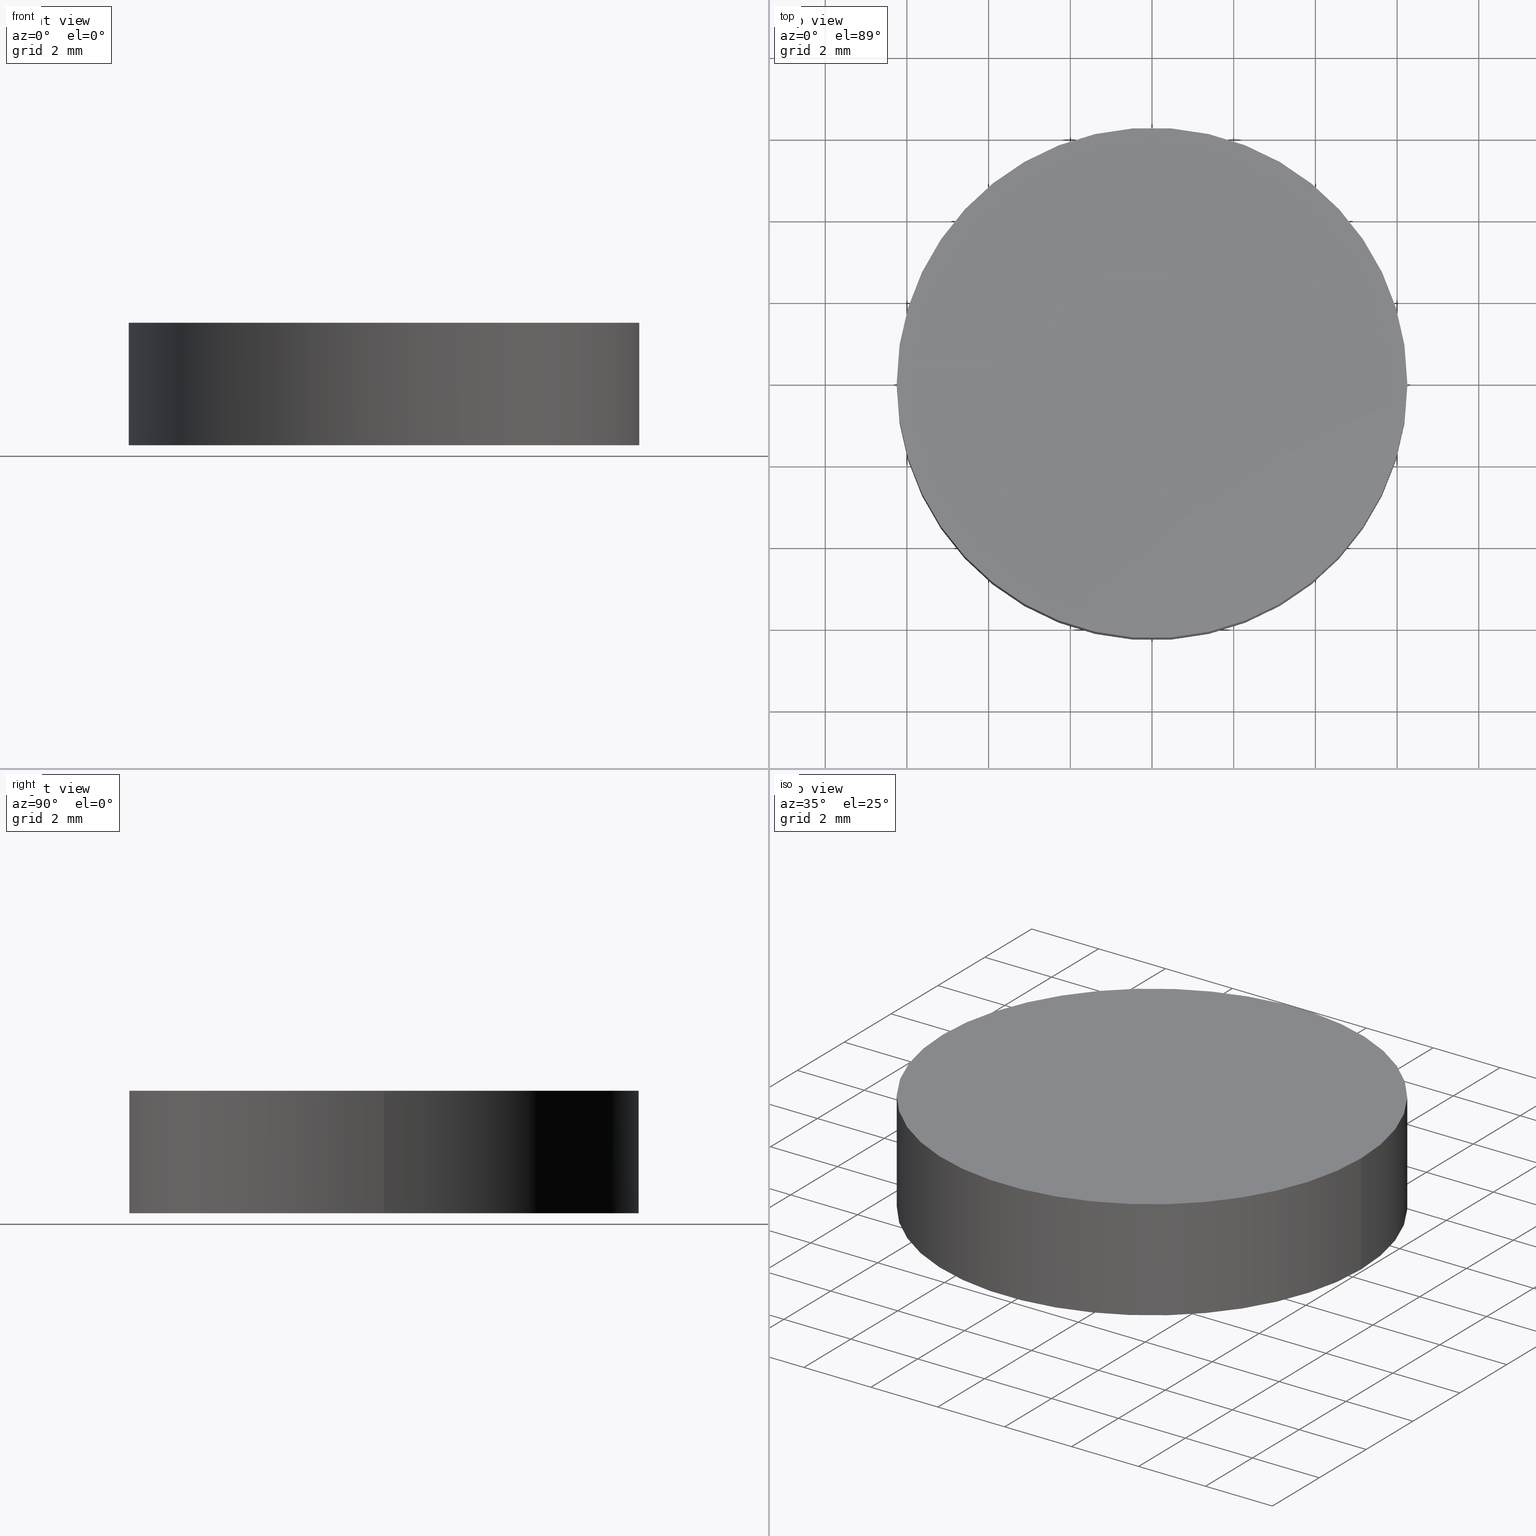
[diagram: canonical four-view strip — front | top / right | iso, engineering-drawing reading convention]
A machine part, canonical four-view strip (front | top / right | iso — engineering-drawing reading convention). The complete STEP part file that produces these views, byte-faithful:
ISO-10303-21;
HEADER;
FILE_DESCRIPTION (( 'STEP AP203' ),
    '1' );
FILE_NAME ('416002.STEP',
    '2019-08-21T06:17:56',
    ( '' ),
    ( '' ),
    'SwSTEP 2.0',
    'SolidWorks 2016',
    '' );
FILE_SCHEMA (( 'CONFIG_CONTROL_DESIGN' ));
ENDSEC;

DATA;
#1 = VERTEX_POINT ( 'NONE', #151 ) ;
#2 = PERSON_AND_ORGANIZATION ( #72, #167 ) ;
#3 = SHAPE_DEFINITION_REPRESENTATION ( #177, #42 ) ;
#4 = AXIS2_PLACEMENT_3D ( 'NONE', #237, #101, #67 ) ;
#5 = PLANE ( 'NONE',  #4 ) ;
#6 = DIRECTION ( 'NONE',  ( 0.0000000000000000000, 0.0000000000000000000, 1.000000000000000000 ) ) ;
#7 = PRODUCT_RELATED_PRODUCT_CATEGORY ( 'detail', '', ( #168 ) ) ;
#8 = DIRECTION ( 'NONE',  ( -0.0000000000000000000, -0.0000000000000000000, -1.000000000000000000 ) ) ;
#9 = CC_DESIGN_PERSON_AND_ORGANIZATION_ASSIGNMENT ( #106, #91, ( #21 ) ) ;
#10 = APPROVAL_PERSON_ORGANIZATION ( #159, #163, #114 ) ;
#11 = PRODUCT_DEFINITION_FORMATION_WITH_SPECIFIED_SOURCE ( '�κ�', '', #168, .NOT_KNOWN. ) ;
#12 = AXIS2_PLACEMENT_3D ( 'NONE', #122, #8, #214 ) ;
#13 = CC_DESIGN_DATE_AND_TIME_ASSIGNMENT ( #223, #19, ( #212 ) ) ;
#14 = LOCAL_TIME ( 14, 17, 56.00000000000000000, #128 ) ;
#15 = ORIENTED_EDGE ( 'NONE', *, *, #226, .T. ) ;
#16 = PRODUCT_DEFINITION ( 'δ֪', '', #21, #33 ) ;
#17 = CALENDAR_DATE ( 2019, 21, 8 ) ;
#18 = CALENDAR_DATE ( 2019, 21, 8 ) ;
#19 = DATE_TIME_ROLE ( 'creation_date' ) ;
#20 = PERSON_AND_ORGANIZATION ( #72, #167 ) ;
#21 = PRODUCT_DEFINITION_FORMATION_WITH_SPECIFIED_SOURCE ( '�κ�', '', #130, .NOT_KNOWN. ) ;
#22 = COORDINATED_UNIVERSAL_TIME_OFFSET ( 8, 0, .AHEAD. ) ;
#23 = COORDINATED_UNIVERSAL_TIME_OFFSET ( 8, 0, .AHEAD. ) ;
#24 = PRODUCT_RELATED_PRODUCT_CATEGORY ( 'detail', '', ( #130 ) ) ;
#25 = PERSON_AND_ORGANIZATION ( #72, #167 ) ;
#26 =( NAMED_UNIT ( * ) PLANE_ANGLE_UNIT ( ) SI_UNIT ( $, .RADIAN. ) );
#27 = CC_DESIGN_SECURITY_CLASSIFICATION ( #111, ( #11 ) ) ;
#28 = DIRECTION ( 'NONE',  ( 0.0000000000000000000, 0.0000000000000000000, 1.000000000000000000 ) ) ;
#29 = PLANE ( 'NONE',  #49 ) ;
#30 = CC_DESIGN_APPROVAL ( #196, ( #16 ) ) ;
#31 = EDGE_LOOP ( 'NONE', ( #95, #131, #15, #52 ) ) ;
#32 = ORIENTED_EDGE ( 'NONE', *, *, #164, .F. ) ;
#33 = DESIGN_CONTEXT ( 'detailed design', #34, 'design' ) ;
#34 = APPLICATION_CONTEXT ( 'configuration controlled 3d designs of mechanical parts and assemblies' ) ;
#35 = APPLICATION_PROTOCOL_DEFINITION ( 'international standard', 'config_control_design', 1994, #225 ) ;
#36 = VERTEX_POINT ( 'NONE', #117 ) ;
#37 = APPROVAL_STATUS ( 'not_yet_approved' ) ;
#38 = APPLICATION_CONTEXT ( 'configuration controlled 3d designs of mechanical parts and assemblies' ) ;
#39 = APPROVAL_PERSON_ORGANIZATION ( #116, #125, #232 ) ;
#40 = CC_DESIGN_PERSON_AND_ORGANIZATION_ASSIGNMENT ( #2, #132, ( #94 ) ) ;
#41 = LINE ( 'NONE', #213, #240 ) ;
#42 = ADVANCED_BREP_SHAPE_REPRESENTATION ( '416002', ( #192, #190 ), #180 ) ;
#43 = DIRECTION ( 'NONE',  ( 0.0000000000000000000, 0.0000000000000000000, 1.000000000000000000 ) ) ;
#44 = ORIENTED_EDGE ( 'NONE', *, *, #247, .T. ) ;
#45 = DIRECTION ( 'NONE',  ( 1.000000000000000000, 0.0000000000000000000, 0.0000000000000000000 ) ) ;
#46 = CALENDAR_DATE ( 2019, 21, 8 ) ;
#47 = ORIENTED_EDGE ( 'NONE', *, *, #164, .T. ) ;
#48 = DIRECTION ( 'NONE',  ( 1.000000000000000000, 0.0000000000000000000, 0.0000000000000000000 ) ) ;
#49 = AXIS2_PLACEMENT_3D ( 'NONE', #217, #239, #160 ) ;
#50 = CC_DESIGN_PERSON_AND_ORGANIZATION_ASSIGNMENT ( #84, #144, ( #212 ) ) ;
#51 = LINE ( 'NONE', #136, #250 ) ;
#52 = ORIENTED_EDGE ( 'NONE', *, *, #108, .T. ) ;
#53 = PERSON_AND_ORGANIZATION_ROLE ( 'creator' ) ;
#54 = DESIGN_CONTEXT ( 'detailed design', #38, 'design' ) ;
#55 = PERSON_AND_ORGANIZATION_ROLE ( 'design_supplier' ) ;
#56 = APPROVAL ( #37, 'δָ��' ) ;
#57 = ADVANCED_FACE ( 'NONE', ( #127 ), #86, .T. ) ;
#58 = EDGE_LOOP ( 'NONE', ( #135, #32 ) ) ;
#59 = APPROVAL ( #107, 'δָ��' ) ;
#60 = PERSON_AND_ORGANIZATION ( #72, #167 ) ;
#61 = CARTESIAN_POINT ( 'NONE',  ( 0.0000000000000000000, 0.0000000000000000000, 0.0000000000000000000 ) ) ;
#62 = CARTESIAN_POINT ( 'NONE',  ( 0.0000000000000000000, 0.0000000000000000000, 3.000000000000000000 ) ) ;
#63 = CC_DESIGN_PERSON_AND_ORGANIZATION_ASSIGNMENT ( #69, #206, ( #16 ) ) ;
#64 = DIRECTION ( 'NONE',  ( 0.0000000000000000000, 0.0000000000000000000, 1.000000000000000000 ) ) ;
#65 = PERSON_AND_ORGANIZATION ( #72, #167 ) ;
#66 = COORDINATED_UNIVERSAL_TIME_OFFSET ( 8, 0, .AHEAD. ) ;
#67 = DIRECTION ( 'NONE',  ( 1.000000000000000000, 0.0000000000000000000, -0.0000000000000000000 ) ) ;
#68 = PERSON_AND_ORGANIZATION ( #72, #167 ) ;
#69 = PERSON_AND_ORGANIZATION ( #72, #167 ) ;
#70 = APPROVAL_ROLE ( '' ) ;
#71 = APPROVAL_PERSON_ORGANIZATION ( #68, #56, #70 ) ;
#72 = PERSON ( 'δָ��', 'δָ��', 'δָ��', ('δָ��'), ('δָ��'), ('δָ��') ) ;
#73 = AXIS2_PLACEMENT_3D ( 'NONE', #200, #248, #129 ) ;
#74 = SECURITY_CLASSIFICATION_LEVEL ( 'unclassified' ) ;
#75 = APPROVAL_STATUS ( 'not_yet_approved' ) ;
#76 = APPROVAL_STATUS ( 'not_yet_approved' ) ;
#77 = CALENDAR_DATE ( 2019, 21, 8 ) ;
#78 = LOCAL_TIME ( 14, 17, 56.00000000000000000, #123 ) ;
#79 = DATE_AND_TIME ( #182, #224 ) ;
#80 = EDGE_LOOP ( 'NONE', ( #44, #104 ) ) ;
#81 = PERSON_AND_ORGANIZATION ( #72, #167 ) ;
#82 = DIRECTION ( 'NONE',  ( 1.000000000000000000, 0.0000000000000000000, 0.0000000000000000000 ) ) ;
#83 =( NAMED_UNIT ( * ) SI_UNIT ( $, .STERADIAN. ) SOLID_ANGLE_UNIT ( ) );
#84 = PERSON_AND_ORGANIZATION ( #72, #167 ) ;
#85 = CC_DESIGN_SECURITY_CLASSIFICATION ( #94, ( #21 ) ) ;
#86 = CYLINDRICAL_SURFACE ( 'NONE', #242, 6.249999999999998200 ) ;
#87 = CALENDAR_DATE ( 2019, 21, 8 ) ;
#88 = CALENDAR_DATE ( 2019, 21, 8 ) ;
#89 = PERSON_AND_ORGANIZATION_ROLE ( 'classification_officer' ) ;
#90 = APPLICATION_PROTOCOL_DEFINITION ( 'international standard', 'config_control_design', 1994, #34 ) ;
#91 = PERSON_AND_ORGANIZATION_ROLE ( 'creator' ) ;
#92 = ADVANCED_FACE ( 'NONE', ( #236 ), #5, .F. ) ;
#93 = CARTESIAN_POINT ( 'NONE',  ( 0.0000000000000000000, 0.0000000000000000000, 3.000000000000000000 ) ) ;
#94 = SECURITY_CLASSIFICATION ( '', '', #74 ) ;
#95 = ORIENTED_EDGE ( 'NONE', *, *, #183, .F. ) ;
#96 = DIRECTION ( 'NONE',  ( -1.000000000000000000, 0.0000000000000000000, 0.0000000000000000000 ) ) ;
#97 = COORDINATED_UNIVERSAL_TIME_OFFSET ( 8, 0, .AHEAD. ) ;
#98 = CARTESIAN_POINT ( 'NONE',  ( 0.0000000000000000000, 0.0000000000000000000, 0.0000000000000000000 ) ) ;
#99 = DIRECTION ( 'NONE',  ( -0.0000000000000000000, -0.0000000000000000000, -1.000000000000000000 ) ) ;
#100 = CC_DESIGN_PERSON_AND_ORGANIZATION_ASSIGNMENT ( #124, #55, ( #11 ) ) ;
#101 = DIRECTION ( 'NONE',  ( 0.0000000000000000000, 0.0000000000000000000, 1.000000000000000000 ) ) ;
#102 = DATE_AND_TIME ( #18, #150 ) ;
#103 = DATE_AND_TIME ( #153, #78 ) ;
#104 = ORIENTED_EDGE ( 'NONE', *, *, #137, .T. ) ;
#105 = APPROVAL_PERSON_ORGANIZATION ( #158, #59, #147 ) ;
#106 = PERSON_AND_ORGANIZATION ( #72, #167 ) ;
#107 = APPROVAL_STATUS ( 'not_yet_approved' ) ;
#108 = EDGE_CURVE ( 'NONE', #193, #36, #231, .T. ) ;
#109 = PRODUCT_DEFINITION_SHAPE ( 'NONE', 'NONE',  #212 ) ;
#110 = APPROVAL_DATE_TIME ( #187, #59 ) ;
#111 = SECURITY_CLASSIFICATION ( '', '', #143 ) ;
#112 = CALENDAR_DATE ( 2019, 21, 8 ) ;
#113 = DIRECTION ( 'NONE',  ( 1.000000000000000000, 0.0000000000000000000, 0.0000000000000000000 ) ) ;
#114 = APPROVAL_ROLE ( '' ) ;
#115 = APPLICATION_PROTOCOL_DEFINITION ( 'international standard', 'config_control_design', 1994, #38 ) ;
#116 = PERSON_AND_ORGANIZATION ( #72, #167 ) ;
#117 = CARTESIAN_POINT ( 'NONE',  ( 6.249999999999998200, 7.654042494670955600E-016, 0.0000000000000000000 ) ) ;
#118 = LOCAL_TIME ( 14, 17, 56.00000000000000000, #169 ) ;
#119 = CARTESIAN_POINT ( 'NONE',  ( -6.249999999999998200, 0.0000000000000000000, 0.0000000000000000000 ) ) ;
#120 = CARTESIAN_POINT ( 'NONE',  ( 6.249999999999998200, 7.654042494670955600E-016, 3.000000000000000000 ) ) ;
#121 = APPROVAL_DATE_TIME ( #244, #196 ) ;
#122 = CARTESIAN_POINT ( 'NONE',  ( 0.0000000000000000000, 0.0000000000000000000, 3.000000000000000000 ) ) ;
#123 = COORDINATED_UNIVERSAL_TIME_OFFSET ( 8, 0, .AHEAD. ) ;
#124 = PERSON_AND_ORGANIZATION ( #72, #167 ) ;
#125 = APPROVAL ( #76, 'δָ��' ) ;
#126 = FACE_OUTER_BOUND ( 'NONE', #80, .T. ) ;
#127 = FACE_OUTER_BOUND ( 'NONE', #139, .T. ) ;
#128 = COORDINATED_UNIVERSAL_TIME_OFFSET ( 8, 0, .AHEAD. ) ;
#129 = DIRECTION ( 'NONE',  ( 1.000000000000000000, 0.0000000000000000000, 0.0000000000000000000 ) ) ;
#130 = PRODUCT ( '416002', '416002', '', ( #142 ) ) ;
#131 = ORIENTED_EDGE ( 'NONE', *, *, #247, .F. ) ;
#132 = PERSON_AND_ORGANIZATION_ROLE ( 'classification_officer' ) ;
#133 = DATE_AND_TIME ( #112, #189 ) ;
#134 = DIRECTION ( 'NONE',  ( 0.0000000000000000000, 0.0000000000000000000, 1.000000000000000000 ) ) ;
#135 = ORIENTED_EDGE ( 'NONE', *, *, #108, .F. ) ;
#136 = CARTESIAN_POINT ( 'NONE',  ( 6.249999999999998200, 7.654042494670955600E-016, 3.000000000000000000 ) ) ;
#137 = EDGE_CURVE ( 'NONE', #197, #1, #195, .T. ) ;
#138 = CARTESIAN_POINT ( 'NONE',  ( 0.0000000000000000000, 0.0000000000000000000, 3.000000000000000000 ) ) ;
#139 = EDGE_LOOP ( 'NONE', ( #172, #245, #47, #176 ) ) ;
#140 = CYLINDRICAL_SURFACE ( 'NONE', #12, 6.249999999999998200 ) ;
#141 = CLOSED_SHELL ( 'NONE', ( #57, #233, #146, #92 ) ) ;
#142 = MECHANICAL_CONTEXT ( 'NONE', #170, 'mechanical' ) ;
#143 = SECURITY_CLASSIFICATION_LEVEL ( 'unclassified' ) ;
#144 = PERSON_AND_ORGANIZATION_ROLE ( 'creator' ) ;
#145 = APPROVAL_STATUS ( 'not_yet_approved' ) ;
#146 = ADVANCED_FACE ( 'NONE', ( #126 ), #29, .T. ) ;
#147 = APPROVAL_ROLE ( '' ) ;
#148 = AXIS2_PLACEMENT_3D ( 'NONE', #181, #64, #48 ) ;
#149 = CIRCLE ( 'NONE', #203, 6.249999999999998200 ) ;
#150 = LOCAL_TIME ( 14, 17, 56.00000000000000000, #66 ) ;
#151 = CARTESIAN_POINT ( 'NONE',  ( -6.249999999999998200, 0.0000000000000000000, 3.000000000000000000 ) ) ;
#152 = APPROVAL_PERSON_ORGANIZATION ( #251, #196, #207 ) ;
#153 = CALENDAR_DATE ( 2019, 21, 8 ) ;
#154 = AXIS2_PLACEMENT_3D ( 'NONE', #138, #28, #156 ) ;
#155 =( LENGTH_UNIT ( ) NAMED_UNIT ( * ) SI_UNIT ( .MILLI., .METRE. ) );
#156 = DIRECTION ( 'NONE',  ( 1.000000000000000000, 0.0000000000000000000, 0.0000000000000000000 ) ) ;
#157 = CC_DESIGN_APPROVAL ( #202, ( #11 ) ) ;
#158 = PERSON_AND_ORGANIZATION ( #72, #167 ) ;
#159 = PERSON_AND_ORGANIZATION ( #72, #167 ) ;
#160 = DIRECTION ( 'NONE',  ( 1.000000000000000000, 0.0000000000000000000, -0.0000000000000000000 ) ) ;
#161 = APPROVAL_DATE_TIME ( #102, #125 ) ;
#162 = DATE_AND_TIME ( #210, #118 ) ;
#163 = APPROVAL ( #188, 'δָ��' ) ;
#164 = EDGE_CURVE ( 'NONE', #36, #193, #201, .T. ) ;
#165 = UNCERTAINTY_MEASURE_WITH_UNIT (LENGTH_MEASURE( 1.000000000000000100E-005 ), #155, 'distance_accuracy_value', 'NONE');
#166 = CC_DESIGN_PERSON_AND_ORGANIZATION_ASSIGNMENT ( #65, #229, ( #21 ) ) ;
#167 = ORGANIZATION ( 'δָ��', 'δָ��', '' ) ;
#168 = PRODUCT ( '416002', '416002', '', ( #208 ) ) ;
#169 = COORDINATED_UNIVERSAL_TIME_OFFSET ( 8, 0, .AHEAD. ) ;
#170 = APPLICATION_CONTEXT ( 'configuration controlled 3d designs of mechanical parts and assemblies' ) ;
#171 = APPROVAL_ROLE ( '' ) ;
#172 = ORIENTED_EDGE ( 'NONE', *, *, #137, .F. ) ;
#173 = COORDINATED_UNIVERSAL_TIME_OFFSET ( 8, 0, .AHEAD. ) ;
#174 = APPROVAL_PERSON_ORGANIZATION ( #20, #202, #171 ) ;
#175 = APPROVAL_DATE_TIME ( #79, #163 ) ;
#176 = ORIENTED_EDGE ( 'NONE', *, *, #226, .F. ) ;
#177 = PRODUCT_DEFINITION_SHAPE ( 'NONE', 'NONE',  #16 ) ;
#178 = CC_DESIGN_DATE_AND_TIME_ASSIGNMENT ( #162, #205, ( #111 ) ) ;
#179 = DIRECTION ( 'NONE',  ( -0.0000000000000000000, -0.0000000000000000000, -1.000000000000000000 ) ) ;
#180 =( GEOMETRIC_REPRESENTATION_CONTEXT ( 3 ) GLOBAL_UNCERTAINTY_ASSIGNED_CONTEXT ( ( #165 ) ) GLOBAL_UNIT_ASSIGNED_CONTEXT ( ( #155, #26, #83 ) ) REPRESENTATION_CONTEXT ( 'NONE', 'WORKASPACE' ) );
#181 = CARTESIAN_POINT ( 'NONE',  ( 0.0000000000000000000, 0.0000000000000000000, 0.0000000000000000000 ) ) ;
#182 = CALENDAR_DATE ( 2019, 21, 8 ) ;
#183 = EDGE_CURVE ( 'NONE', #197, #36, #51, .T. ) ;
#184 = FACE_OUTER_BOUND ( 'NONE', #31, .T. ) ;
#185 = AXIS2_PLACEMENT_3D ( 'NONE', #98, #43, #82 ) ;
#186 = CC_DESIGN_DATE_AND_TIME_ASSIGNMENT ( #209, #227, ( #94 ) ) ;
#187 = DATE_AND_TIME ( #88, #14 ) ;
#188 = APPROVAL_STATUS ( 'not_yet_approved' ) ;
#189 = LOCAL_TIME ( 14, 17, 56.00000000000000000, #215 ) ;
#190 = AXIS2_PLACEMENT_3D ( 'NONE', #61, #6, #113 ) ;
#191 = APPLICATION_PROTOCOL_DEFINITION ( 'international standard', 'config_control_design', 1994, #170 ) ;
#192 = MANIFOLD_SOLID_BREP ( '͹̨-����1', #141 ) ;
#193 = VERTEX_POINT ( 'NONE', #119 ) ;
#194 = DATE_TIME_ROLE ( 'creation_date' ) ;
#195 = CIRCLE ( 'NONE', #154, 6.249999999999998200 ) ;
#196 = APPROVAL ( #75, 'δָ��' ) ;
#197 = VERTEX_POINT ( 'NONE', #120 ) ;
#198 = LOCAL_TIME ( 14, 17, 56.00000000000000000, #173 ) ;
#199 = LOCAL_TIME ( 14, 17, 56.00000000000000000, #97 ) ;
#200 = CARTESIAN_POINT ( 'NONE',  ( 0.0000000000000000000, 0.0000000000000000000, 0.0000000000000000000 ) ) ;
#201 = CIRCLE ( 'NONE', #185, 6.249999999999998200 ) ;
#202 = APPROVAL ( #145, 'δָ��' ) ;
#203 = AXIS2_PLACEMENT_3D ( 'NONE', #62, #134, #45 ) ;
#204 = LOCAL_TIME ( 14, 17, 56.00000000000000000, #23 ) ;
#205 = DATE_TIME_ROLE ( 'classification_date' ) ;
#206 = PERSON_AND_ORGANIZATION_ROLE ( 'creator' ) ;
#207 = APPROVAL_ROLE ( '' ) ;
#208 = MECHANICAL_CONTEXT ( 'NONE', #225, 'mechanical' ) ;
#209 = DATE_AND_TIME ( #17, #216 ) ;
#210 = CALENDAR_DATE ( 2019, 21, 8 ) ;
#211 = CC_DESIGN_APPROVAL ( #125, ( #21 ) ) ;
#212 = PRODUCT_DEFINITION ( 'δ֪', '', #11, #54 ) ;
#213 = CARTESIAN_POINT ( 'NONE',  ( -6.249999999999998200, 0.0000000000000000000, 3.000000000000000000 ) ) ;
#214 = DIRECTION ( 'NONE',  ( -1.000000000000000000, 0.0000000000000000000, 0.0000000000000000000 ) ) ;
#215 = COORDINATED_UNIVERSAL_TIME_OFFSET ( 8, 0, .AHEAD. ) ;
#216 = LOCAL_TIME ( 14, 17, 56.00000000000000000, #22 ) ;
#217 = CARTESIAN_POINT ( 'NONE',  ( 0.0000000000000000000, 0.0000000000000000000, 3.000000000000000000 ) ) ;
#218 = DATE_AND_TIME ( #87, #204 ) ;
#219 = CC_DESIGN_PERSON_AND_ORGANIZATION_ASSIGNMENT ( #25, #89, ( #111 ) ) ;
#220 = COORDINATED_UNIVERSAL_TIME_OFFSET ( 8, 0, .AHEAD. ) ;
#221 = PERSON_AND_ORGANIZATION ( #72, #167 ) ;
#222 = CC_DESIGN_PERSON_AND_ORGANIZATION_ASSIGNMENT ( #221, #252, ( #168 ) ) ;
#223 = DATE_AND_TIME ( #46, #199 ) ;
#224 = LOCAL_TIME ( 14, 17, 56.00000000000000000, #220 ) ;
#225 = APPLICATION_CONTEXT ( 'configuration controlled 3d designs of mechanical parts and assemblies' ) ;
#226 = EDGE_CURVE ( 'NONE', #1, #193, #41, .T. ) ;
#227 = DATE_TIME_ROLE ( 'classification_date' ) ;
#228 = CC_DESIGN_DATE_AND_TIME_ASSIGNMENT ( #218, #194, ( #16 ) ) ;
#229 = PERSON_AND_ORGANIZATION_ROLE ( 'design_supplier' ) ;
#230 = CC_DESIGN_APPROVAL ( #56, ( #212 ) ) ;
#231 = CIRCLE ( 'NONE', #148, 6.249999999999998200 ) ;
#232 = APPROVAL_ROLE ( '' ) ;
#233 = ADVANCED_FACE ( 'NONE', ( #184 ), #140, .T. ) ;
#234 = CC_DESIGN_PERSON_AND_ORGANIZATION_ASSIGNMENT ( #60, #249, ( #130 ) ) ;
#235 = APPROVAL_DATE_TIME ( #133, #202 ) ;
#236 = FACE_OUTER_BOUND ( 'NONE', #58, .T. ) ;
#237 = CARTESIAN_POINT ( 'NONE',  ( 0.0000000000000000000, 0.0000000000000000000, 0.0000000000000000000 ) ) ;
#238 = DIRECTION ( 'NONE',  ( -0.0000000000000000000, -0.0000000000000000000, -1.000000000000000000 ) ) ;
#239 = DIRECTION ( 'NONE',  ( 0.0000000000000000000, 0.0000000000000000000, 1.000000000000000000 ) ) ;
#240 = VECTOR ( 'NONE', #179, 1000.000000000000000 ) ;
#241 = APPROVAL_DATE_TIME ( #103, #56 ) ;
#242 = AXIS2_PLACEMENT_3D ( 'NONE', #93, #99, #96 ) ;
#243 = CC_DESIGN_APPROVAL ( #59, ( #111 ) ) ;
#244 = DATE_AND_TIME ( #77, #198 ) ;
#245 = ORIENTED_EDGE ( 'NONE', *, *, #183, .T. ) ;
#246 = CC_DESIGN_PERSON_AND_ORGANIZATION_ASSIGNMENT ( #81, #53, ( #11 ) ) ;
#247 = EDGE_CURVE ( 'NONE', #1, #197, #149, .T. ) ;
#248 = DIRECTION ( 'NONE',  ( 0.0000000000000000000, 0.0000000000000000000, 1.000000000000000000 ) ) ;
#249 = PERSON_AND_ORGANIZATION_ROLE ( 'design_owner' ) ;
#250 = VECTOR ( 'NONE', #238, 1000.000000000000000 ) ;
#251 = PERSON_AND_ORGANIZATION ( #72, #167 ) ;
#252 = PERSON_AND_ORGANIZATION_ROLE ( 'design_owner' ) ;
#253 = CC_DESIGN_APPROVAL ( #163, ( #94 ) ) ;
ENDSEC;
END-ISO-10303-21;
